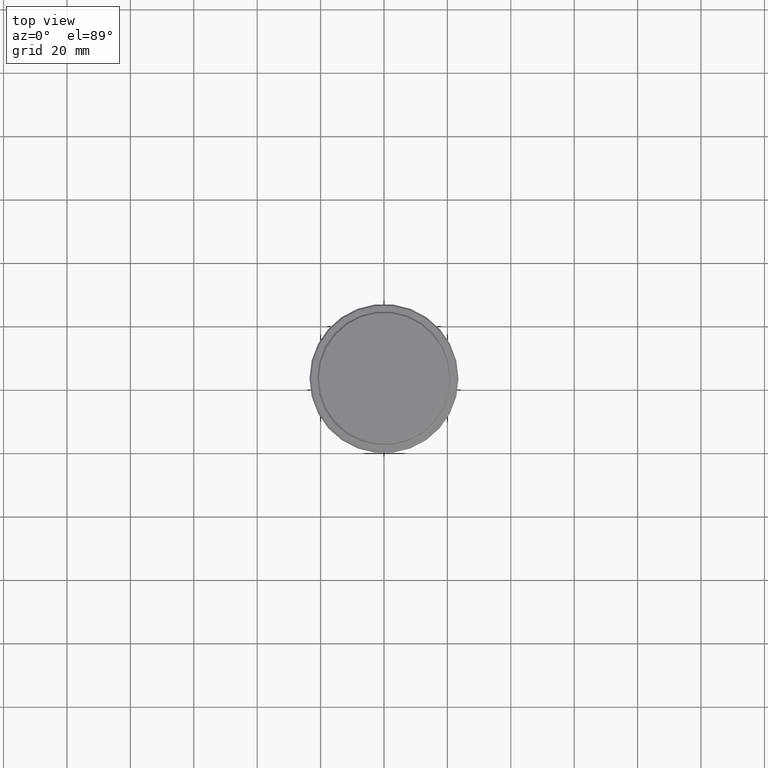
[diagram: clean part render]
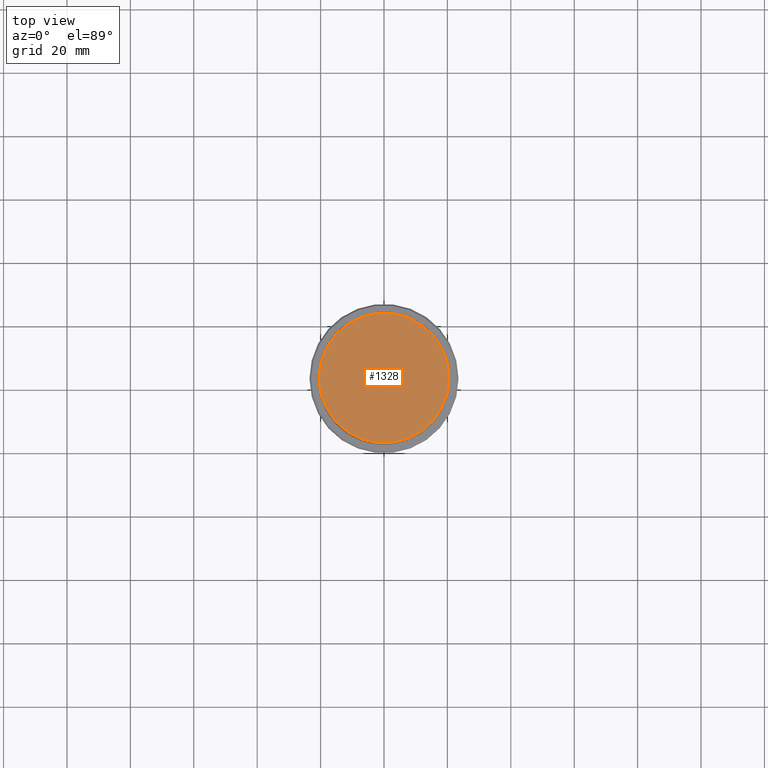
[diagram: same view with one face highlighted and labeled with its STEP entity id]
A machine part, top view. The second image highlights one B-rep face of the part: STEP entity #1328.
In plain terms, the highlighted planar face has unit normal (0, -0, 1).
Its self-contained STEP definition (entity closure, byte-faithful):
#22 = EDGE_CURVE ( 'NONE', #879, #1068, #874, .T. ) ;
#67 = ORIENTED_EDGE ( 'NONE', *, *, #22, .T. ) ;
#104 = DIRECTION ( 'NONE',  ( 0.000000000000000000, -0.000000000000000000, 1.000000000000000000 ) ) ;
#148 = CARTESIAN_POINT ( 'NONE',  ( 0.000000000000000000, 0.000000000000000000, 0.000000000000000000 ) ) ;
#304 = DIRECTION ( 'NONE',  ( 1.000000000000000000, 0.000000000000000000, 0.000000000000000000 ) ) ;
#358 = CARTESIAN_POINT ( 'NONE',  ( -20.49999999999998934, 0.000000000000000000, 0.000000000000000000 ) ) ;
#414 = AXIS2_PLACEMENT_3D ( 'NONE', #1089, #104, #304 ) ;
#499 = ORIENTED_EDGE ( 'NONE', *, *, #633, .T. ) ;
#597 = CIRCLE ( 'NONE', #1011, 20.49999999999998934 ) ;
#633 = EDGE_CURVE ( 'NONE', #1068, #879, #597, .T. ) ;
#658 = EDGE_LOOP ( 'NONE', ( #499, #67 ) ) ;
#784 = AXIS2_PLACEMENT_3D ( 'NONE', #1307, #1411, #1062 ) ;
#874 = CIRCLE ( 'NONE', #784, 20.49999999999998934 ) ;
#877 = FACE_OUTER_BOUND ( 'NONE', #658, .T. ) ;
#879 = VERTEX_POINT ( 'NONE', #976 ) ;
#976 = CARTESIAN_POINT ( 'NONE',  ( 20.49999999999998934, 2.541142108230757480E-15, 0.000000000000000000 ) ) ;
#1011 = AXIS2_PLACEMENT_3D ( 'NONE', #148, #1025, #1355 ) ;
#1025 = DIRECTION ( 'NONE',  ( -0.000000000000000000, -0.000000000000000000, 1.000000000000000000 ) ) ;
#1062 = DIRECTION ( 'NONE',  ( 1.000000000000000000, 0.000000000000000000, 0.000000000000000000 ) ) ;
#1068 = VERTEX_POINT ( 'NONE', #358 ) ;
#1089 = CARTESIAN_POINT ( 'NONE',  ( 0.000000000000000000, 0.000000000000000000, 0.000000000000000000 ) ) ;
#1201 = PLANE ( 'NONE',  #414 ) ;
#1307 = CARTESIAN_POINT ( 'NONE',  ( 0.000000000000000000, 0.000000000000000000, 0.000000000000000000 ) ) ;
#1328 = ADVANCED_FACE ( 'NONE', ( #877 ), #1201, .T. ) ;
#1355 = DIRECTION ( 'NONE',  ( 1.000000000000000000, 0.000000000000000000, 0.000000000000000000 ) ) ;
#1411 = DIRECTION ( 'NONE',  ( -0.000000000000000000, -0.000000000000000000, 1.000000000000000000 ) ) ;